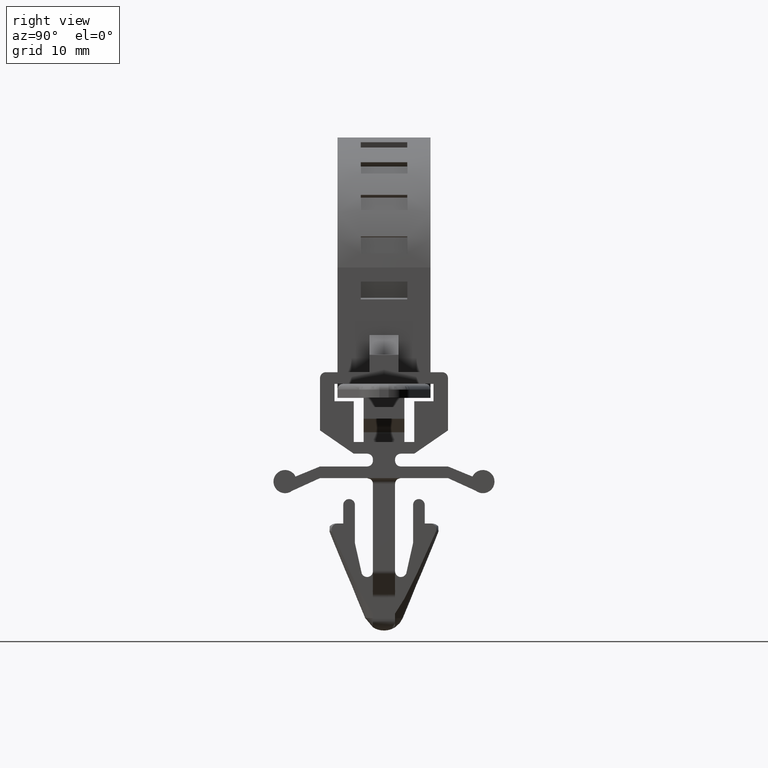
[diagram: clean part render]
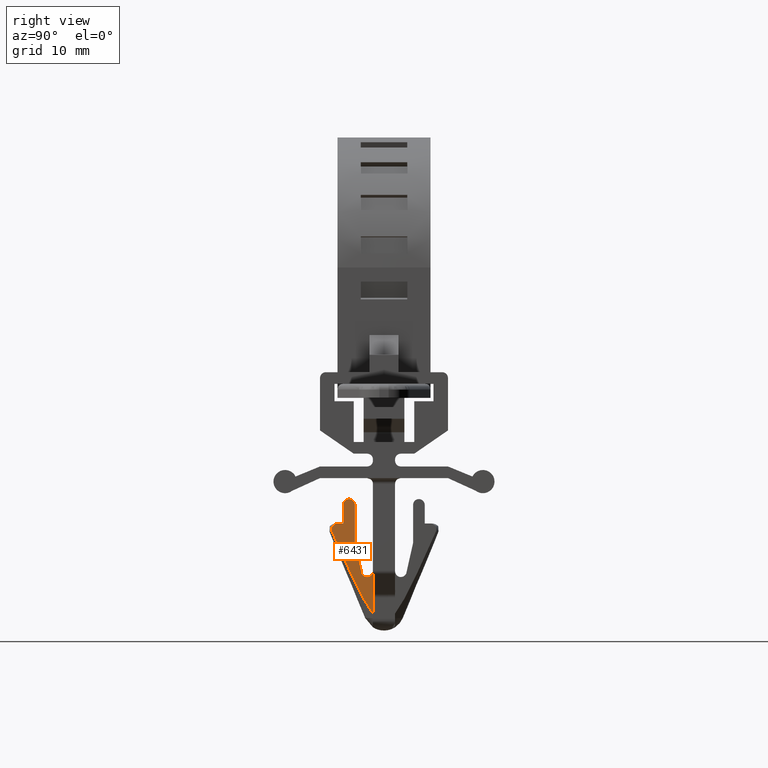
[diagram: same view with one face highlighted and labeled with its STEP entity id]
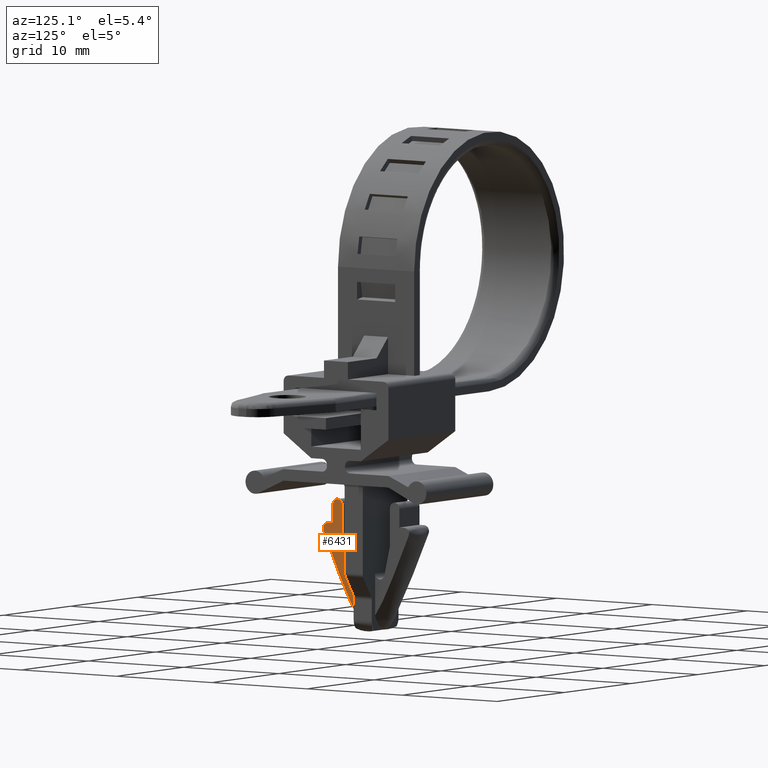
[diagram: same view with one face highlighted and labeled with its STEP entity id]
A machine part, right view. The second image highlights one B-rep face of the part: STEP entity #6431.
A second angle (auxiliary view) of the same face is appended — the face is thin or edge-on in the first view.
In plain terms, the highlighted face is a freeform B-spline surface patch.
Its self-contained STEP definition (entity closure, byte-faithful):
#352=CARTESIAN_POINT('',(12.699999999999999,-0.950000000000000,-26.100010999999899));
#353=VERTEX_POINT('',#352);
#359=CARTESIAN_POINT('',(12.699999999999999,-0.949999999999920,-29.738744531181101));
#360=VERTEX_POINT('',#359);
#361=CARTESIAN_POINT('',(12.699999999999999,-0.949999999999920,-29.738744531181101));
#362=CARTESIAN_POINT('',(12.699999999999999,-0.950000000000000,-26.100010999999899));
#363=QUASI_UNIFORM_CURVE('',1,(#361,#362),.UNSPECIFIED.,.F.,.U.);
#364=EDGE_CURVE('',#360,#353,#363,.T.);
#5847=CARTESIAN_POINT('',(12.699999999999999,-1.911538461364065,-26.292318692726148));
#5848=VERTEX_POINT('',#5847);
#5854=CARTESIAN_POINT('',(12.699999999999999,-0.950000000000000,-26.100010999999899));
#5855=CARTESIAN_POINT('',(12.699999999999999,-0.949785681799162,-26.185893099301470));
#5856=CARTESIAN_POINT('',(12.700000000000010,-0.987788470524782,-26.328737305312121));
#5857=CARTESIAN_POINT('',(12.700000000000021,-1.098281455430078,-26.463445594196049));
#5858=CARTESIAN_POINT('',(12.699999999999950,-1.211706307379150,-26.545535584747430));
#5859=CARTESIAN_POINT('',(12.700000000000021,-1.353020391099857,-26.602022659930459));
#5860=CARTESIAN_POINT('',(12.700000000000101,-1.528244909707399,-26.604614953056501));
#5861=CARTESIAN_POINT('',(12.699999999999630,-1.702245122285780,-26.543248428419119));
#5862=CARTESIAN_POINT('',(12.700000000001030,-1.832299840669650,-26.437538970475860));
#5863=CARTESIAN_POINT('',(12.699999999998980,-1.892292193827989,-26.338535685794579));
#5864=CARTESIAN_POINT('',(12.699999999999999,-1.911538461364065,-26.292318692726148));
#5865=B_SPLINE_CURVE_WITH_KNOTS('',3,(#5854,#5855,#5856,#5857,#5858,#5859,#5860,#5861,#5862,#5863,#5864),.UNSPECIFIED.,.F.,.U.,(4,1,1,1,1,1,1,1,4),(0.000000252396306,0.257516453811556,0.429205981587234,0.515043225972914,0.676012283770713,0.879847921851995,1.030071448580122,1.223223696550163,1.373427114507312),.UNSPECIFIED.);
#5866=EDGE_CURVE('',#353,#5848,#5865,.T.);
#5876=CARTESIAN_POINT('',(12.699999999999999,-2.500000000000000,-23.680010999999801));
#5877=VERTEX_POINT('',#5876);
#5878=CARTESIAN_POINT('',(12.699999999999999,-2.500000000000000,-23.680010999999801));
#5879=CARTESIAN_POINT('',(12.699999999999999,-1.911538461364065,-26.292318692726148));
#5880=QUASI_UNIFORM_CURVE('',1,(#5878,#5879),.UNSPECIFIED.,.F.,.U.);
#5881=EDGE_CURVE('',#5877,#5848,#5880,.T.);
#6191=CARTESIAN_POINT('',(12.699999999999999,-4.466384966940614,-22.692318692726051));
#6192=VERTEX_POINT('',#6191);
#6193=CARTESIAN_POINT('',(12.699999999999999,-0.949999999999920,-29.738744531181101));
#6194=CARTESIAN_POINT('',(12.699999999999999,-1.057210571934172,-29.601178311944341));
#6195=CARTESIAN_POINT('',(12.699999999999999,-1.156641858870635,-29.457432844969571));
#6196=CARTESIAN_POINT('',(12.699999999999999,-1.303810689004948,-29.231088263308330));
#6197=CARTESIAN_POINT('',(12.699999999999999,-1.354225849808123,-29.150671311228798));
#6198=CARTESIAN_POINT('',(12.699999999999999,-1.452835423966536,-28.988974580635180));
#6199=CARTESIAN_POINT('',(12.699999999999999,-1.501084130058476,-28.907603814281789));
#6200=CARTESIAN_POINT('',(12.699999999999999,-1.643392610088594,-28.662285713005222));
#6201=CARTESIAN_POINT('',(12.699999999999999,-1.735053357124142,-28.497151675353908));
#6202=CARTESIAN_POINT('',(12.699999999999999,-1.914286193313047,-28.164861104406139));
#6203=CARTESIAN_POINT('',(12.699999999999999,-2.001831851237213,-27.997691496636971));
#6204=CARTESIAN_POINT('',(12.699999999999999,-2.260208886702012,-27.494075452103210));
#6205=CARTESIAN_POINT('',(12.699999999999999,-2.426880305825532,-27.155571250168521));
#6206=CARTESIAN_POINT('',(12.699999999999999,-2.754262622461480,-26.475614414479018));
#6207=CARTESIAN_POINT('',(12.699999999999999,-2.914882537134468,-26.134116775149820));
#6208=CARTESIAN_POINT('',(12.699999999999999,-3.232398988291390,-25.449279690111510));
#6209=CARTESIAN_POINT('',(12.699999999999999,-3.389265728729540,-25.105925505489392));
#6210=CARTESIAN_POINT('',(12.699999999999999,-3.856136736754076,-24.074018258851979));
#6211=CARTESIAN_POINT('',(12.699999999999999,-4.162506463122662,-23.383677366239748));
#6212=CARTESIAN_POINT('',(12.699999999999999,-4.466384966940614,-22.692318692726051));
#6213=B_SPLINE_CURVE_WITH_KNOTS('',3,(#6193,#6194,#6195,#6196,#6197,#6198,#6199,#6200,#6201,#6202,#6203,#6204,#6205,#6206,#6207,#6208,#6209,#6210,#6211,#6212),.UNSPECIFIED.,.F.,.U.,(4,2,2,2,2,2,2,2,2,4),(0.564873901671623,0.593750000000009,0.609375000000009,0.625000000000009,0.656250000000009,0.687500000000008,0.750000000000007,0.812500000000005,0.875000000000003,1.0),.UNSPECIFIED.);
#6214=EDGE_CURVE('',#360,#6192,#6213,.T.);
#6345=CARTESIAN_POINT('',(12.699999999999999,-0.772332499705327,-30.230189529071200));
#6346=CARTESIAN_POINT('',(12.699999999999999,-4.684573946256821,-30.230189529071200));
#6347=CARTESIAN_POINT('',(12.699999999999999,-0.772332499705327,-19.408566002109801));
#6348=CARTESIAN_POINT('',(12.699999999999999,-4.684573946256821,-19.408566002109801));
#6349=B_SPLINE_SURFACE_WITH_KNOTS('',1,1,((#6345,#6347),(#6346,#6348)),.UNSPECIFIED.,.F.,.F.,.U.,(2,2),(2,2),(0.0,3.912241446551493),(0.0,10.821623526961400),.UNSPECIFIED.);
#6350=ORIENTED_EDGE('',*,*,#364,.T.);
#6351=ORIENTED_EDGE('',*,*,#5866,.T.);
#6352=ORIENTED_EDGE('',*,*,#5881,.F.);
#6353=CARTESIAN_POINT('',(12.699999999999999,-2.500000000000000,-20.400010999999900));
#6354=VERTEX_POINT('',#6353);
#6355=CARTESIAN_POINT('',(12.699999999999999,-2.500000000000000,-23.680010999999801));
#6356=CARTESIAN_POINT('',(12.699999999999999,-2.500000000000000,-20.400010999999900));
#6357=QUASI_UNIFORM_CURVE('',1,(#6355,#6356),.UNSPECIFIED.,.F.,.U.);
#6358=EDGE_CURVE('',#5877,#6354,#6357,.T.);
#6359=ORIENTED_EDGE('',*,*,#6358,.T.);
#6360=CARTESIAN_POINT('',(12.699999999999999,-3.000000029548171,-19.900010999999900));
#6361=VERTEX_POINT('',#6360);
#6362=CARTESIAN_POINT('',(12.699999999999999,-3.000000029548171,-19.900010999999900));
#6363=CARTESIAN_POINT('',(12.700000000000010,-2.930441719000571,-19.899917438199029));
#6364=CARTESIAN_POINT('',(12.699999999999999,-2.820073237346685,-19.923443379612870));
#6365=CARTESIAN_POINT('',(12.699999999999980,-2.696362043269466,-19.997633877127370));
#6366=CARTESIAN_POINT('',(12.700000000000051,-2.595079527836729,-20.093958910533829));
#6367=CARTESIAN_POINT('',(12.699999999999889,-2.519070385389532,-20.228197134659169));
#6368=CARTESIAN_POINT('',(12.700000000000120,-2.499980725576512,-20.346835324016499));
#6369=CARTESIAN_POINT('',(12.699999999999999,-2.500000000000000,-20.400010999999900));
#6370=B_SPLINE_CURVE_WITH_KNOTS('',3,(#6362,#6363,#6364,#6365,#6366,#6367,#6368,#6369),.UNSPECIFIED.,.F.,.U.,(4,1,1,1,1,4),(0.000000108739250,0.208627728842375,0.331355498238124,0.429520299908102,0.625881564639155,0.785417888837381),.UNSPECIFIED.);
#6371=EDGE_CURVE('',#6361,#6354,#6370,.T.);
#6372=ORIENTED_EDGE('',*,*,#6371,.F.);
#6373=CARTESIAN_POINT('',(12.699999999999999,-3.500000000000000,-20.400010999999900));
#6374=VERTEX_POINT('',#6373);
#6375=CARTESIAN_POINT('',(12.699999999999999,-3.500000000000000,-20.400010999999900));
#6376=CARTESIAN_POINT('',(12.700000000000010,-3.500029436064587,-20.346829624752210));
#6377=CARTESIAN_POINT('',(12.699999999999999,-3.486152726843568,-20.260950951856142));
#6378=CARTESIAN_POINT('',(12.700000000000010,-3.424568423856061,-20.121883435645479));
#6379=CARTESIAN_POINT('',(12.700000000000029,-3.321080726349518,-20.001884474515428));
#6380=CARTESIAN_POINT('',(12.699999999999960,-3.163614373360303,-19.917790195153700));
#6381=CARTESIAN_POINT('',(12.700000000000010,-3.053178845962452,-19.899986110715449));
#6382=CARTESIAN_POINT('',(12.699999999999999,-3.000000029548171,-19.900010999999900));
#6383=B_SPLINE_CURVE_WITH_KNOTS('',3,(#6375,#6376,#6377,#6378,#6379,#6380,#6381,#6382),.UNSPECIFIED.,.F.,.U.,(4,1,1,1,1,4),(0.000000108782852,0.159536426221587,0.257717519158151,0.454062480069377,0.625881538072172,0.785417855528878),.UNSPECIFIED.);
#6384=EDGE_CURVE('',#6374,#6361,#6383,.T.);
#6385=ORIENTED_EDGE('',*,*,#6384,.F.);
#6386=CARTESIAN_POINT('',(12.699999999999999,-3.500000000000000,-22.000010999999802));
#6387=VERTEX_POINT('',#6386);
#6388=CARTESIAN_POINT('',(12.699999999999999,-3.500000000000000,-20.400010999999900));
#6389=CARTESIAN_POINT('',(12.699999999999999,-3.500000000000000,-22.000010999999802));
#6390=QUASI_UNIFORM_CURVE('',1,(#6388,#6389),.UNSPECIFIED.,.F.,.U.);
#6391=EDGE_CURVE('',#6374,#6387,#6390,.T.);
#6392=ORIENTED_EDGE('',*,*,#6391,.T.);
#6393=CARTESIAN_POINT('',(12.699999999999999,-3.976493430146750,-22.000010999999802));
#6394=VERTEX_POINT('',#6393);
#6395=CARTESIAN_POINT('',(12.699999999999999,-3.976493430146750,-22.000010999999802));
#6396=CARTESIAN_POINT('',(12.699999999999999,-3.500000000000000,-22.000010999999802));
#6397=QUASI_UNIFORM_CURVE('',1,(#6395,#6396),.UNSPECIFIED.,.F.,.U.);
#6398=EDGE_CURVE('',#6394,#6387,#6397,.T.);
#6399=ORIENTED_EDGE('',*,*,#6398,.F.);
#6400=CARTESIAN_POINT('',(12.699999999999999,-4.466384966940587,-22.692318692726040));
#6401=CARTESIAN_POINT('',(12.699999999999999,-4.474782372637332,-22.673213571911511));
#6402=CARTESIAN_POINT('',(12.699999999999990,-4.481953436862451,-22.653565503105209));
#6403=CARTESIAN_POINT('',(12.699999999999999,-4.493747344345192,-22.613141171193629));
#6404=CARTESIAN_POINT('',(12.699999999999999,-4.498350624459766,-22.592347622965921));
#6405=CARTESIAN_POINT('',(12.699999999999999,-4.507877381541777,-22.529774194629720));
#6406=CARTESIAN_POINT('',(12.699999999999999,-4.508596652365769,-22.487048386806212));
#6407=CARTESIAN_POINT('',(12.699999999999999,-4.501406740923511,-22.424796619468079));
#6408=CARTESIAN_POINT('',(12.699999999999999,-4.497650875675169,-22.404232760022889));
#6409=CARTESIAN_POINT('',(12.699999999999999,-4.487389935153422,-22.363482725403191));
#6410=CARTESIAN_POINT('',(12.699999999999999,-4.480833501655805,-22.343216885652289));
#6411=CARTESIAN_POINT('',(12.699999999999999,-4.457579996908176,-22.284705269328299));
#6412=CARTESIAN_POINT('',(12.700000000000010,-4.437262340489007,-22.248158590851730));
#6413=CARTESIAN_POINT('',(12.699999999999999,-4.387045644640020,-22.179962190664028));
#6414=CARTESIAN_POINT('',(12.699999999999999,-4.358144573221425,-22.149678875923250));
#6415=CARTESIAN_POINT('',(12.699999999999999,-4.309562742615419,-22.109688997826371));
#6416=CARTESIAN_POINT('',(12.699999999999999,-4.292364340972157,-22.097202352094801));
#6417=CARTESIAN_POINT('',(12.699999999999999,-4.256896459057843,-22.074560665202661));
#6418=CARTESIAN_POINT('',(12.699999999999999,-4.220331922173792,-22.054179698024100));
#6419=CARTESIAN_POINT('',(12.699999999999999,-4.181660172554012,-22.038142683596231));
#6420=CARTESIAN_POINT('',(12.699999999999999,-4.141932735463918,-22.024281935670931));
#6421=CARTESIAN_POINT('',(12.699999999999999,-4.121511326080789,-22.018450817980980));
#6422=CARTESIAN_POINT('',(12.699999999999999,-4.060146314537126,-22.004609145727290));
#6423=CARTESIAN_POINT('',(12.699999999999999,-4.018623962151290,-22.000010999999809));
#6424=CARTESIAN_POINT('',(12.699999999999999,-3.976493430146750,-22.000010999999802));
#6425=B_SPLINE_CURVE_WITH_KNOTS('',3,(#6400,#6401,#6402,#6403,#6404,#6405,#6406,#6407,#6408,#6409,#6410,#6411,#6412,#6413,#6414,#6415,#6416,#6417,#6418,#6419,#6420,#6421,#6422,#6423,#6424),.UNSPECIFIED.,.F.,.U.,(4,2,2,2,2,2,2,2,2,1,2,2,4),(0.0,0.062500000000003,0.125000000000006,0.250000000000013,0.312500000000011,0.375000000000009,0.500000000000006,0.625000000000002,0.687500000000001,0.750000000000001,0.812500000000000,0.874999999999999,1.0),.UNSPECIFIED.);
#6426=EDGE_CURVE('',#6192,#6394,#6425,.T.);
#6427=ORIENTED_EDGE('',*,*,#6426,.F.);
#6428=ORIENTED_EDGE('',*,*,#6214,.F.);
#6429=EDGE_LOOP('',(#6350,#6351,#6352,#6359,#6372,#6385,#6392,#6399,#6427,#6428));
#6430=FACE_OUTER_BOUND('',#6429,.T.);
#6431=ADVANCED_FACE('',(#6430),#6349,.F.);